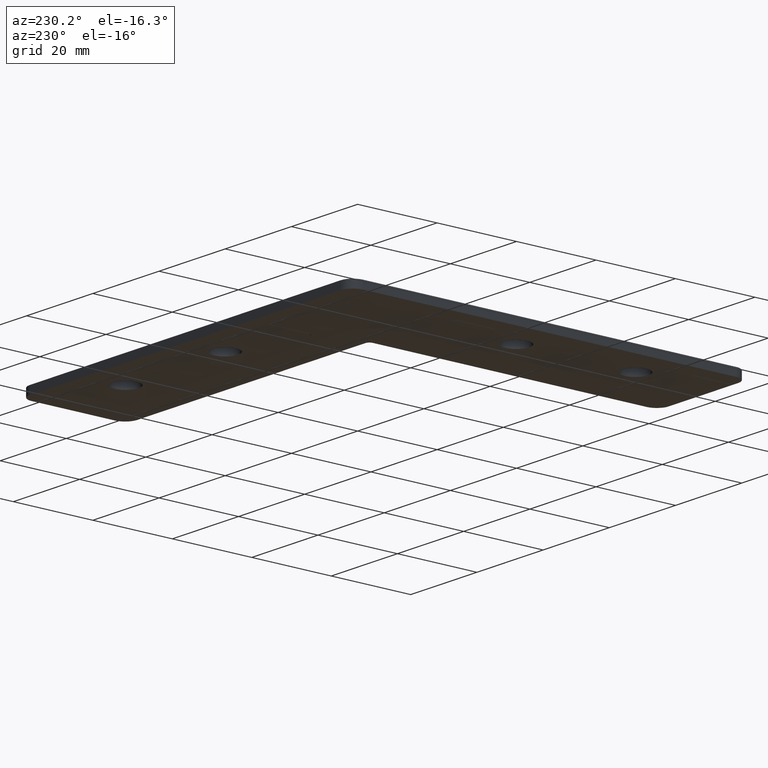
[diagram: clean part render]
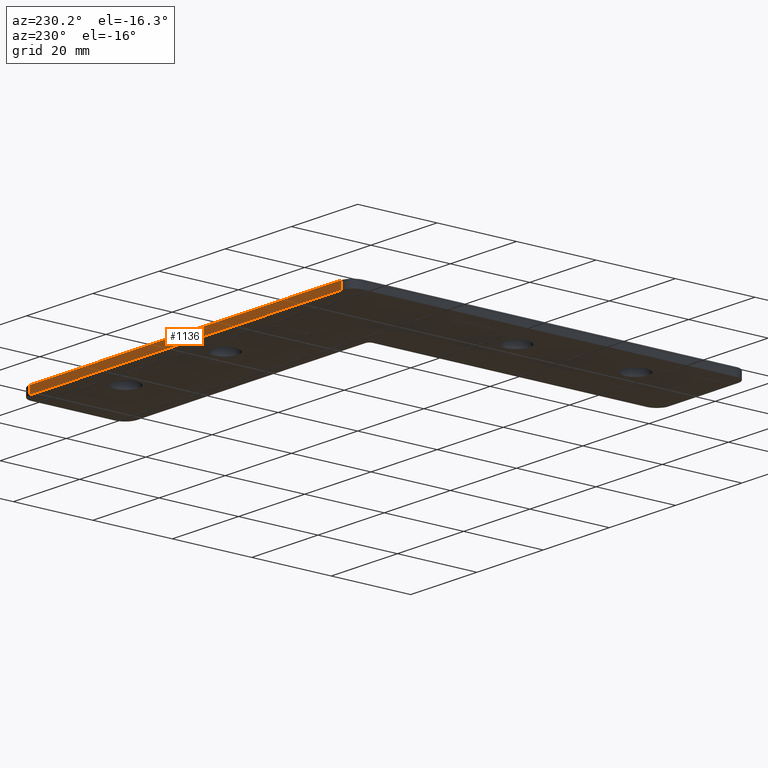
[diagram: same view with one face highlighted and labeled with its STEP entity id]
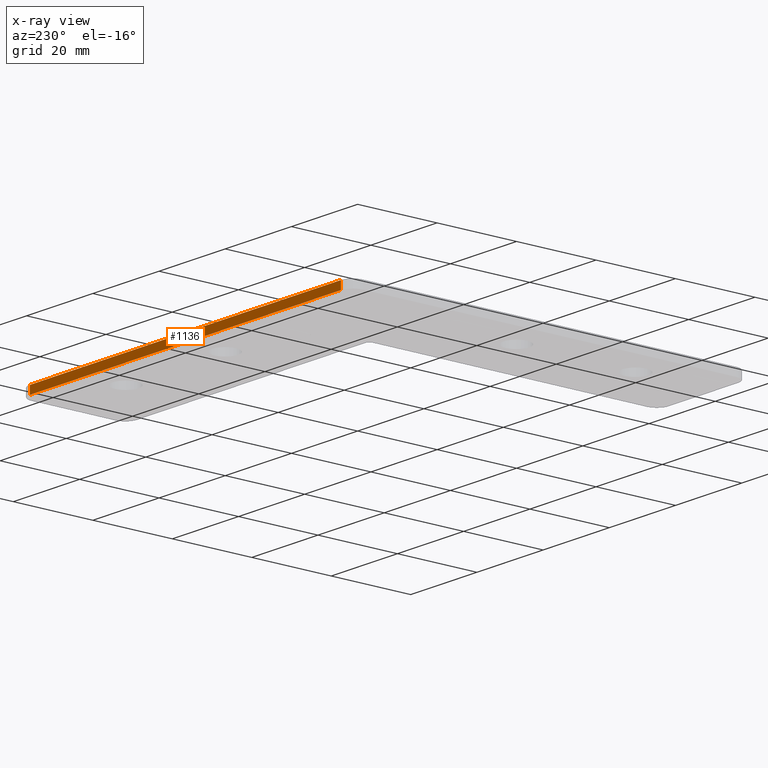
[diagram: x-ray of the same camera — body ghosted, the highlighted face saturated]
A machine part, auxiliary view. The second image highlights one B-rep face of the part: STEP entity #1136.
The next image is the same camera in x-ray: the body ghosted, the highlighted face saturated — about 0% of this face is hidden behind the body in this view.
In plain terms, the highlighted planar face has unit normal (0, -1, 0).
Its self-contained STEP definition (entity closure, byte-faithful):
#31=PLANE('',#1223);
#74=FACE_OUTER_BOUND('',#132,.T.);
#132=EDGE_LOOP('',(#803,#804,#805,#806));
#248=LINE('',#1676,#380);
#249=LINE('',#1680,#381);
#250=LINE('',#1682,#382);
#251=LINE('',#1683,#383);
#380=VECTOR('',#1347,2.);
#381=VECTOR('',#1352,93.9998597412108);
#382=VECTOR('',#1353,2.);
#383=VECTOR('',#1354,93.9998597412108);
#513=VERTEX_POINT('',#1673);
#514=VERTEX_POINT('',#1675);
#515=VERTEX_POINT('',#1679);
#516=VERTEX_POINT('',#1681);
#629=EDGE_CURVE('',#514,#513,#248,.T.);
#631=EDGE_CURVE('',#513,#515,#249,.T.);
#632=EDGE_CURVE('',#516,#515,#250,.T.);
#633=EDGE_CURVE('',#514,#516,#251,.T.);
#803=ORIENTED_EDGE('',*,*,#629,.T.);
#804=ORIENTED_EDGE('',*,*,#631,.T.);
#805=ORIENTED_EDGE('',*,*,#632,.F.);
#806=ORIENTED_EDGE('',*,*,#633,.F.);
#1136=ADVANCED_FACE('',(#74),#31,.F.);
#1223=AXIS2_PLACEMENT_3D('',#1678,#1350,#1351);
#1347=DIRECTION('',(0.,0.,-1.));
#1350=DIRECTION('center_axis',(0.,-1.,0.));
#1351=DIRECTION('ref_axis',(0.,0.,-1.));
#1352=DIRECTION('',(-1.,0.,0.));
#1353=DIRECTION('',(0.,0.,-1.));
#1354=DIRECTION('',(-1.,0.,0.));
#1673=CARTESIAN_POINT('',(87.0498597412109,99.9998597412109,-2.));
#1675=CARTESIAN_POINT('',(87.0498597412109,99.9998597412109,0.));
#1676=CARTESIAN_POINT('',(87.0498597412109,99.9998597412109,0.));
#1678=CARTESIAN_POINT('Origin',(87.0498597412109,99.9998597412109,0.));
#1679=CARTESIAN_POINT('',(-6.94999999999999,99.9998597412109,-2.));
#1680=CARTESIAN_POINT('',(87.0498597412109,99.9998597412109,-2.));
#1681=CARTESIAN_POINT('',(-6.94999999999999,99.9998597412109,0.));
#1682=CARTESIAN_POINT('',(-6.94999999999999,99.9998597412109,0.));
#1683=CARTESIAN_POINT('',(87.0498597412109,99.9998597412109,0.));